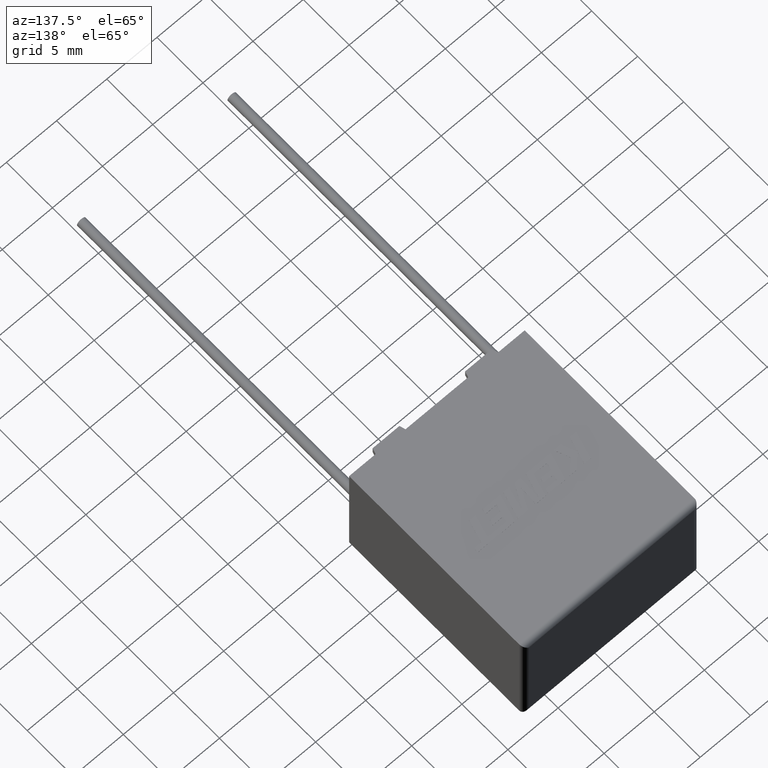
[diagram: clean part render]
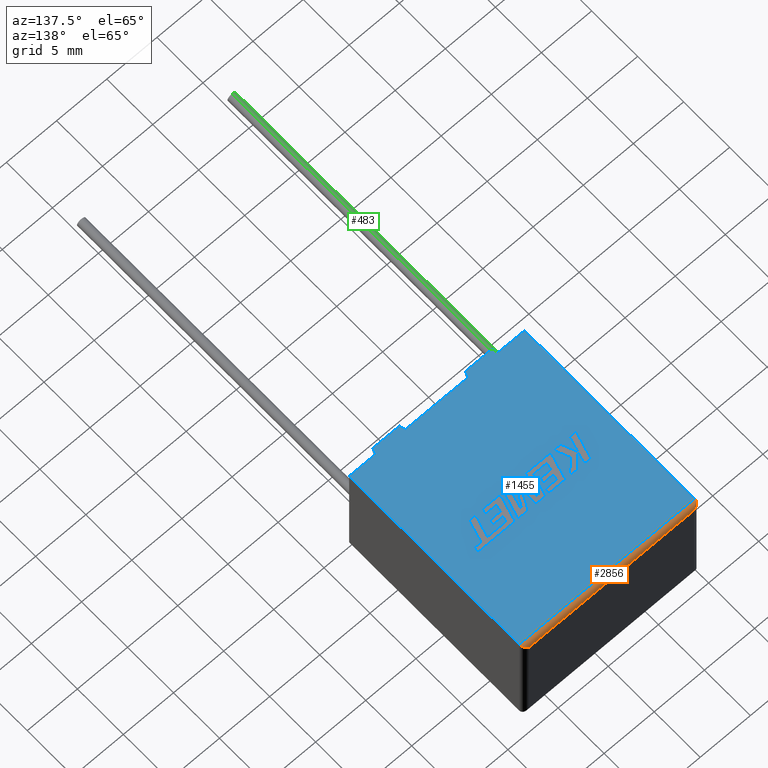
[diagram: same view with three faces highlighted in distinct colors, each labeled with its STEP entity id]
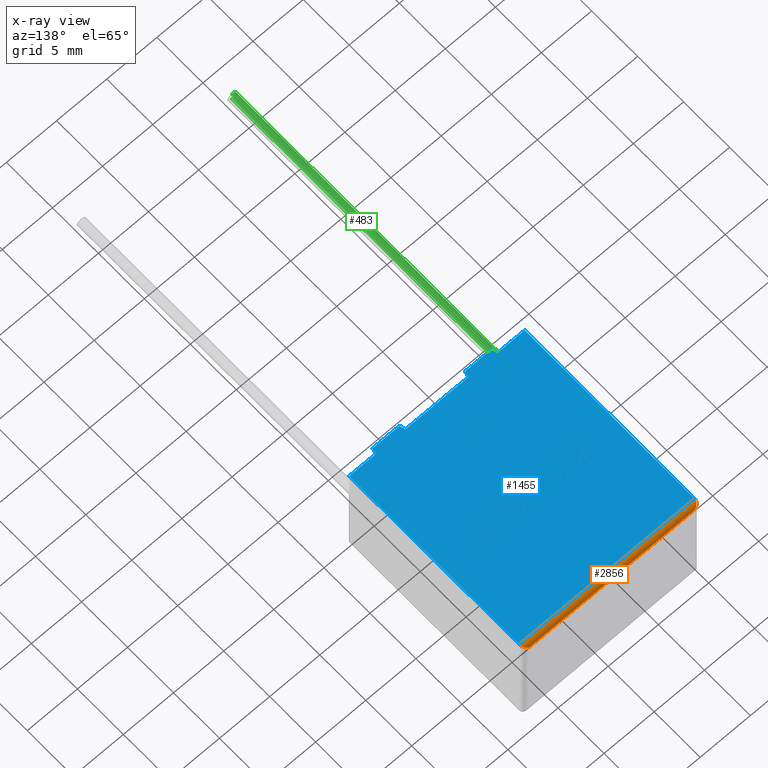
[diagram: x-ray of the same camera — body ghosted, the three highlighted faces saturated]
A machine part, auxiliary view with three faces highlighted in distinct colors.
The next image is the same camera in x-ray (body ghosted, the three faces saturated) — at least one of them is partly hidden behind the body in this view.
Their STEP definitions:

[orange] entity #2856 — the highlighted cylindrical surface (edge-blend (fillet) strip) has radius 0.5 mm, axis along (-1, 0, 0).
#91 = CARTESIAN_POINT ( 'NONE',  ( 17.00000000000000000, 19.00000000000000000, 11.00000000000000000 ) ) ;
#222 =( BOUNDED_CURVE ( )  B_SPLINE_CURVE ( 3, ( #91, #3211, #847, #856 ),
 .UNSPECIFIED., .F., .F. ) 
 B_SPLINE_CURVE_WITH_KNOTS ( ( 4, 4 ),
 ( 1.570796326794896600, 3.141592653589793100 ),
 .UNSPECIFIED. ) 
 CURVE ( )  GEOMETRIC_REPRESENTATION_ITEM ( )  RATIONAL_B_SPLINE_CURVE ( ( 1.000000000000000000, 0.8047378541243649400, 0.8047378541243649400, 1.000000000000000000 ) ) 
 REPRESENTATION_ITEM ( '' )  );
#300 = CARTESIAN_POINT ( 'NONE',  ( 0.2071067811865475200, 19.00000000000000000, 11.29289321881345200 ) ) ;
#331 = CARTESIAN_POINT ( 'NONE',  ( 0.0000000000000000000, 18.50000000000000000, 11.50000000000000000 ) ) ;
#368 = EDGE_CURVE ( 'NONE', #614, #1318, #222, .T. ) ;
#411 = ORIENTED_EDGE ( 'NONE', *, *, #1343, .T. ) ;
#451 = CARTESIAN_POINT ( 'NONE',  ( 0.5000000000000000000, 19.00000000000000000, 11.00000000000000000 ) ) ;
#486 = DIRECTION ( 'NONE',  ( 0.0000000000000000000, 0.0000000000000000000, 1.000000000000000000 ) ) ;
#525 = LINE ( 'NONE', #331, #2402 ) ;
#532 = VERTEX_POINT ( 'NONE', #451 ) ;
#555 = EDGE_CURVE ( 'NONE', #532, #614, #1845, .T. ) ;
#614 = VERTEX_POINT ( 'NONE', #1022 ) ;
#691 = CARTESIAN_POINT ( 'NONE',  ( 0.0000000000000000000, 19.00000000000000000, 11.00000000000000000 ) ) ;
#847 = CARTESIAN_POINT ( 'NONE',  ( 17.50000000000000000, 18.79289321881344700, 11.50000000000000000 ) ) ;
#856 = CARTESIAN_POINT ( 'NONE',  ( 17.50000000000000000, 18.50000000000000000, 11.50000000000000000 ) ) ;
#927 = ORIENTED_EDGE ( 'NONE', *, *, #555, .F. ) ;
#1022 = CARTESIAN_POINT ( 'NONE',  ( 17.00000000000000000, 19.00000000000000000, 11.00000000000000000 ) ) ;
#1038 = CARTESIAN_POINT ( 'NONE',  ( 17.50000000000000000, 18.50000000000000000, 11.50000000000000000 ) ) ;
#1041 = VERTEX_POINT ( 'NONE', #1868 ) ;
#1275 = CARTESIAN_POINT ( 'NONE',  ( 0.5000000000000000000, 19.00000000000000000, 11.00000000000000000 ) ) ;
#1318 = VERTEX_POINT ( 'NONE', #1038 ) ;
#1343 = EDGE_CURVE ( 'NONE', #532, #1041, #1581, .T. ) ;
#1487 = CARTESIAN_POINT ( 'NONE',  ( 0.0000000000000000000, 18.50000000000000000, 11.00000000000000000 ) ) ;
#1581 =( BOUNDED_CURVE ( )  B_SPLINE_CURVE ( 3, ( #1275, #300, #2315, #2271 ),
 .UNSPECIFIED., .F., .F. ) 
 B_SPLINE_CURVE_WITH_KNOTS ( ( 4, 4 ),
 ( 1.570796326794896800, 3.141592653589793100 ),
 .UNSPECIFIED. ) 
 CURVE ( )  GEOMETRIC_REPRESENTATION_ITEM ( )  RATIONAL_B_SPLINE_CURVE ( ( 1.000000000000000000, 0.8047378541243650500, 0.8047378541243650500, 1.000000000000000000 ) ) 
 REPRESENTATION_ITEM ( '' )  );
#1709 = DIRECTION ( 'NONE',  ( 1.000000000000000000, -0.0000000000000000000, -0.0000000000000000000 ) ) ;
#1845 = LINE ( 'NONE', #691, #1849 ) ;
#1849 = VECTOR ( 'NONE', #1709, 1000.000000000000000 ) ;
#1868 = CARTESIAN_POINT ( 'NONE',  ( 0.0000000000000000000, 18.50000000000000000, 11.50000000000000000 ) ) ;
#2022 = DIRECTION ( 'NONE',  ( -1.000000000000000000, 0.0000000000000000000, 0.0000000000000000000 ) ) ;
#2095 = DIRECTION ( 'NONE',  ( -1.000000000000000000, 0.0000000000000000000, 0.0000000000000000000 ) ) ;
#2110 = EDGE_LOOP ( 'NONE', ( #411, #2589, #2409, #927 ) ) ;
#2128 = FACE_OUTER_BOUND ( 'NONE', #2110, .T. ) ;
#2211 = AXIS2_PLACEMENT_3D ( 'NONE', #1487, #2022, #486 ) ;
#2271 = CARTESIAN_POINT ( 'NONE',  ( 0.0000000000000000000, 18.50000000000000000, 11.50000000000000000 ) ) ;
#2315 = CARTESIAN_POINT ( 'NONE',  ( 1.442892915397364600E-016, 18.79289321881345000, 11.50000000000000200 ) ) ;
#2402 = VECTOR ( 'NONE', #2095, 1000.000000000000000 ) ;
#2409 = ORIENTED_EDGE ( 'NONE', *, *, #368, .F. ) ;
#2413 = EDGE_CURVE ( 'NONE', #1318, #1041, #525, .T. ) ;
#2589 = ORIENTED_EDGE ( 'NONE', *, *, #2413, .F. ) ;
#2856 = ADVANCED_FACE ( 'NONE', ( #2128 ), #2872, .T. ) ;
#2872 = CYLINDRICAL_SURFACE ( 'NONE', #2211, 0.5000000000000004400 ) ;
#3211 = CARTESIAN_POINT ( 'NONE',  ( 17.29289321881345400, 19.00000000000000000, 11.29289321881345200 ) ) ;

[blue] entity #1455 — the highlighted planar face has unit normal (0, 0, -1).
#3 = LINE ( 'NONE', #765, #1926 ) ;
#26 = ORIENTED_EDGE ( 'NONE', *, *, #2191, .T. ) ;
#27 = DIRECTION ( 'NONE',  ( 1.000000000000000000, 0.0000000000000000000, 0.0000000000000000000 ) ) ;
#33 = AXIS2_PLACEMENT_3D ( 'NONE', #2144, #562, #1373 ) ;
#160 = LINE ( 'NONE', #599, #1497 ) ;
#240 = VECTOR ( 'NONE', #415, 1000.000000000000000 ) ;
#325 = ORIENTED_EDGE ( 'NONE', *, *, #328, .F. ) ;
#328 = EDGE_CURVE ( 'NONE', #3207, #412, #956, .T. ) ;
#331 = CARTESIAN_POINT ( 'NONE',  ( 0.0000000000000000000, 18.50000000000000000, 11.50000000000000000 ) ) ;
#359 = CARTESIAN_POINT ( 'NONE',  ( 2.650000000000001200, 0.0000000000000000000, 11.50000000000000000 ) ) ;
#377 = EDGE_LOOP ( 'NONE', ( #602, #3225, #3006, #1504, #2421, #26, #1694, #936, #2032, #325, #582, #1967 ) ) ;
#396 = CARTESIAN_POINT ( 'NONE',  ( 5.477500000000001800, -0.4999999999999997800, 11.50000000000000000 ) ) ;
#412 = VERTEX_POINT ( 'NONE', #758 ) ;
#415 = DIRECTION ( 'NONE',  ( -1.000000000000000000, 0.0000000000000000000, 0.0000000000000000000 ) ) ;
#448 = VERTEX_POINT ( 'NONE', #2036 ) ;
#507 = CARTESIAN_POINT ( 'NONE',  ( 0.0000000000000000000, 0.0000000000000000000, 11.50000000000000000 ) ) ;
#525 = LINE ( 'NONE', #331, #2402 ) ;
#548 = LINE ( 'NONE', #990, #1007 ) ;
#562 = DIRECTION ( 'NONE',  ( 0.0000000000000000000, 0.0000000000000000000, -1.000000000000000000 ) ) ;
#582 = ORIENTED_EDGE ( 'NONE', *, *, #2842, .F. ) ;
#599 = CARTESIAN_POINT ( 'NONE',  ( 5.477500000000001800, -0.4999999999999997800, 11.50000000000000000 ) ) ;
#602 = ORIENTED_EDGE ( 'NONE', *, *, #861, .T. ) ;
#623 = EDGE_CURVE ( 'NONE', #1041, #2642, #3, .T. ) ;
#667 = CARTESIAN_POINT ( 'NONE',  ( 0.0000000000000000000, 0.0000000000000000000, 11.50000000000000000 ) ) ;
#713 = VECTOR ( 'NONE', #1025, 1000.000000000000100 ) ;
#758 = CARTESIAN_POINT ( 'NONE',  ( 12.02250000000000100, -0.4999999999999997800, 11.50000000000000000 ) ) ;
#765 = CARTESIAN_POINT ( 'NONE',  ( 0.0000000000000000000, 0.0000000000000000000, 11.50000000000000000 ) ) ;
#767 = EDGE_CURVE ( 'NONE', #412, #3112, #548, .T. ) ;
#849 = VERTEX_POINT ( 'NONE', #2088 ) ;
#861 = EDGE_CURVE ( 'NONE', #1711, #1318, #2424, .T. ) ;
#936 = ORIENTED_EDGE ( 'NONE', *, *, #3049, .T. ) ;
#956 = LINE ( 'NONE', #1444, #240 ) ;
#990 = CARTESIAN_POINT ( 'NONE',  ( 12.02250000000000100, -0.4999999999999997800, 11.50000000000000000 ) ) ;
#1007 = VECTOR ( 'NONE', #1255, 1000.000000000000100 ) ;
#1023 = VECTOR ( 'NONE', #1990, 1000.000000000000000 ) ;
#1025 = DIRECTION ( 'NONE',  ( 0.2873478855663453300, -0.9578262852211513200, 0.0000000000000000000 ) ) ;
#1038 = CARTESIAN_POINT ( 'NONE',  ( 17.50000000000000000, 18.50000000000000000, 11.50000000000000000 ) ) ;
#1041 = VERTEX_POINT ( 'NONE', #1868 ) ;
#1054 = CARTESIAN_POINT ( 'NONE',  ( 11.87250000000000000, 3.445849931100865400E-016, 11.50000000000000000 ) ) ;
#1109 = VERTEX_POINT ( 'NONE', #396 ) ;
#1234 = CARTESIAN_POINT ( 'NONE',  ( 2.800000000000001200, -0.4999999999999997800, 11.50000000000000000 ) ) ;
#1238 = CARTESIAN_POINT ( 'NONE',  ( 0.0000000000000000000, 0.0000000000000000000, 11.50000000000000000 ) ) ;
#1255 = DIRECTION ( 'NONE',  ( -0.2873478855663437700, 0.9578262852211517600, 0.0000000000000000000 ) ) ;
#1260 = CARTESIAN_POINT ( 'NONE',  ( 17.50000000000000000, 0.0000000000000000000, 11.50000000000000000 ) ) ;
#1272 = CARTESIAN_POINT ( 'NONE',  ( 2.650000000000001200, 1.622657008870243500E-016, 11.50000000000000000 ) ) ;
#1318 = VERTEX_POINT ( 'NONE', #1038 ) ;
#1349 = VECTOR ( 'NONE', #2995, 1000.000000000000000 ) ;
#1373 = DIRECTION ( 'NONE',  ( -1.000000000000000000, 0.0000000000000000000, -0.0000000000000000000 ) ) ;
#1429 = CARTESIAN_POINT ( 'NONE',  ( 14.70000000000000100, -0.4999999999999997800, 11.50000000000000000 ) ) ;
#1444 = CARTESIAN_POINT ( 'NONE',  ( 14.70000000000000100, -0.4999999999999997800, 11.50000000000000000 ) ) ;
#1455 = ADVANCED_FACE ( 'NONE', ( #2316 ), #2650, .F. ) ;
#1497 = VECTOR ( 'NONE', #1828, 1000.000000000000100 ) ;
#1504 = ORIENTED_EDGE ( 'NONE', *, *, #2916, .T. ) ;
#1536 = VECTOR ( 'NONE', #27, 1000.000000000000000 ) ;
#1569 = VECTOR ( 'NONE', #2599, 1000.000000000000000 ) ;
#1607 = VECTOR ( 'NONE', #3064, 1000.000000000000000 ) ;
#1694 = ORIENTED_EDGE ( 'NONE', *, *, #3026, .T. ) ;
#1711 = VERTEX_POINT ( 'NONE', #1260 ) ;
#1828 = DIRECTION ( 'NONE',  ( 0.2873478855663437700, 0.9578262852211517600, 0.0000000000000000000 ) ) ;
#1868 = CARTESIAN_POINT ( 'NONE',  ( 0.0000000000000000000, 18.50000000000000000, 11.50000000000000000 ) ) ;
#1926 = VECTOR ( 'NONE', #2023, 1000.000000000000000 ) ;
#1946 = LINE ( 'NONE', #1238, #1349 ) ;
#1967 = ORIENTED_EDGE ( 'NONE', *, *, #2058, .T. ) ;
#1990 = DIRECTION ( 'NONE',  ( 1.000000000000000000, 0.0000000000000000000, 0.0000000000000000000 ) ) ;
#2023 = DIRECTION ( 'NONE',  ( -0.0000000000000000000, -1.000000000000000000, -0.0000000000000000000 ) ) ;
#2032 = ORIENTED_EDGE ( 'NONE', *, *, #767, .F. ) ;
#2036 = CARTESIAN_POINT ( 'NONE',  ( 14.84999999999999800, 0.0000000000000000000, 11.50000000000000000 ) ) ;
#2058 = EDGE_CURVE ( 'NONE', #448, #1711, #1946, .T. ) ;
#2077 = LINE ( 'NONE', #1272, #713 ) ;
#2088 = CARTESIAN_POINT ( 'NONE',  ( 2.800000000000001200, -0.4999999999999997800, 11.50000000000000000 ) ) ;
#2095 = DIRECTION ( 'NONE',  ( -1.000000000000000000, 0.0000000000000000000, 0.0000000000000000000 ) ) ;
#2144 = CARTESIAN_POINT ( 'NONE',  ( 0.0000000000000000000, 0.0000000000000000000, 11.50000000000000000 ) ) ;
#2191 = EDGE_CURVE ( 'NONE', #849, #1109, #3137, .T. ) ;
#2263 = EDGE_CURVE ( 'NONE', #2619, #849, #2077, .T. ) ;
#2296 = VECTOR ( 'NONE', #3249, 1000.000000000000100 ) ;
#2316 = FACE_OUTER_BOUND ( 'NONE', #377, .T. ) ;
#2402 = VECTOR ( 'NONE', #2095, 1000.000000000000000 ) ;
#2413 = EDGE_CURVE ( 'NONE', #1318, #1041, #525, .T. ) ;
#2421 = ORIENTED_EDGE ( 'NONE', *, *, #2263, .T. ) ;
#2424 = LINE ( 'NONE', #2850, #1607 ) ;
#2599 = DIRECTION ( 'NONE',  ( 1.000000000000000000, 0.0000000000000000000, 0.0000000000000000000 ) ) ;
#2612 = VERTEX_POINT ( 'NONE', #2618 ) ;
#2618 = CARTESIAN_POINT ( 'NONE',  ( 5.627500000000000400, 3.445849931100865400E-016, 11.50000000000000000 ) ) ;
#2619 = VERTEX_POINT ( 'NONE', #359 ) ;
#2632 = LINE ( 'NONE', #507, #1536 ) ;
#2642 = VERTEX_POINT ( 'NONE', #667 ) ;
#2650 = PLANE ( 'NONE',  #33 ) ;
#2760 = LINE ( 'NONE', #2849, #1569 ) ;
#2842 = EDGE_CURVE ( 'NONE', #448, #3207, #2949, .T. ) ;
#2849 = CARTESIAN_POINT ( 'NONE',  ( 0.0000000000000000000, 0.0000000000000000000, 11.50000000000000000 ) ) ;
#2850 = CARTESIAN_POINT ( 'NONE',  ( 17.50000000000000000, 0.0000000000000000000, 11.50000000000000000 ) ) ;
#2916 = EDGE_CURVE ( 'NONE', #2642, #2619, #2632, .T. ) ;
#2949 = LINE ( 'NONE', #3226, #2296 ) ;
#2995 = DIRECTION ( 'NONE',  ( 1.000000000000000000, 0.0000000000000000000, 0.0000000000000000000 ) ) ;
#3006 = ORIENTED_EDGE ( 'NONE', *, *, #623, .T. ) ;
#3026 = EDGE_CURVE ( 'NONE', #1109, #2612, #160, .T. ) ;
#3049 = EDGE_CURVE ( 'NONE', #2612, #3112, #2760, .T. ) ;
#3064 = DIRECTION ( 'NONE',  ( 0.0000000000000000000, 1.000000000000000000, 0.0000000000000000000 ) ) ;
#3112 = VERTEX_POINT ( 'NONE', #1054 ) ;
#3137 = LINE ( 'NONE', #1234, #1023 ) ;
#3207 = VERTEX_POINT ( 'NONE', #1429 ) ;
#3225 = ORIENTED_EDGE ( 'NONE', *, *, #2413, .T. ) ;
#3226 = CARTESIAN_POINT ( 'NONE',  ( 14.85000000000000000, 1.622657008870243500E-016, 11.50000000000000000 ) ) ;
#3249 = DIRECTION ( 'NONE',  ( -0.2873478855663453300, -0.9578262852211513200, 0.0000000000000000000 ) ) ;

[green] entity #483 — the highlighted cylindrical surface (edge-blend (fillet) strip) has radius 0.425 mm, axis along (-0, 1, -0).
#76 = AXIS2_PLACEMENT_3D ( 'NONE', #1395, #1629, #2627 ) ;
#333 = EDGE_CURVE ( 'NONE', #1306, #1316, #1975, .T. ) ;
#400 = DIRECTION ( 'NONE',  ( 0.0000000000000000000, 0.0000000000000000000, 1.000000000000000000 ) ) ;
#483 = ADVANCED_FACE ( 'NONE', ( #1566 ), #743, .T. ) ;
#487 = ORIENTED_EDGE ( 'NONE', *, *, #2572, .T. ) ;
#494 = VERTEX_POINT ( 'NONE', #1999 ) ;
#503 = ORIENTED_EDGE ( 'NONE', *, *, #333, .F. ) ;
#559 = CIRCLE ( 'NONE', #2121, 0.4250000000000000400 ) ;
#593 = LINE ( 'NONE', #2394, #3228 ) ;
#636 = CARTESIAN_POINT ( 'NONE',  ( 1.250000000000001100, -30.50000000000000000, 5.325000000000000200 ) ) ;
#743 = CYLINDRICAL_SURFACE ( 'NONE', #1799, 0.4250000000000000400 ) ;
#1014 = DIRECTION ( 'NONE',  ( -0.0000000000000000000, 1.000000000000000000, -0.0000000000000000000 ) ) ;
#1059 = EDGE_LOOP ( 'NONE', ( #503, #1283, #487, #2725 ) ) ;
#1283 = ORIENTED_EDGE ( 'NONE', *, *, #1445, .F. ) ;
#1298 = VECTOR ( 'NONE', #3153, 1000.000000000000000 ) ;
#1306 = VERTEX_POINT ( 'NONE', #2803 ) ;
#1316 = VERTEX_POINT ( 'NONE', #2821 ) ;
#1390 = CARTESIAN_POINT ( 'NONE',  ( 1.250000000000001100, 0.0000000000000000000, 5.750000000000000000 ) ) ;
#1395 = CARTESIAN_POINT ( 'NONE',  ( 1.250000000000001100, -30.50000000000000000, 5.750000000000000000 ) ) ;
#1445 = EDGE_CURVE ( 'NONE', #494, #1306, #3051, .T. ) ;
#1566 = FACE_OUTER_BOUND ( 'NONE', #1059, .T. ) ;
#1629 = DIRECTION ( 'NONE',  ( 0.0000000000000000000, -1.000000000000000000, 0.0000000000000000000 ) ) ;
#1642 = DIRECTION ( 'NONE',  ( -0.0000000000000000000, -1.000000000000000000, -0.0000000000000000000 ) ) ;
#1799 = AXIS2_PLACEMENT_3D ( 'NONE', #2046, #1014, #1970 ) ;
#1970 = DIRECTION ( 'NONE',  ( 0.0000000000000000000, 0.0000000000000000000, 1.000000000000000000 ) ) ;
#1975 = LINE ( 'NONE', #636, #1298 ) ;
#1999 = CARTESIAN_POINT ( 'NONE',  ( 1.250000000000001100, -30.50000000000000000, 6.174999999999999800 ) ) ;
#2046 = CARTESIAN_POINT ( 'NONE',  ( 1.250000000000001100, -30.50000000000000000, 5.750000000000000000 ) ) ;
#2121 = AXIS2_PLACEMENT_3D ( 'NONE', #1390, #1642, #400 ) ;
#2267 = VERTEX_POINT ( 'NONE', #3027 ) ;
#2394 = CARTESIAN_POINT ( 'NONE',  ( 1.250000000000001100, -30.50000000000000000, 6.174999999999999800 ) ) ;
#2572 = EDGE_CURVE ( 'NONE', #494, #2267, #593, .T. ) ;
#2624 = DIRECTION ( 'NONE',  ( -0.0000000000000000000, 1.000000000000000000, -0.0000000000000000000 ) ) ;
#2627 = DIRECTION ( 'NONE',  ( 0.0000000000000000000, 0.0000000000000000000, -1.000000000000000000 ) ) ;
#2696 = EDGE_CURVE ( 'NONE', #2267, #1316, #559, .T. ) ;
#2725 = ORIENTED_EDGE ( 'NONE', *, *, #2696, .T. ) ;
#2803 = CARTESIAN_POINT ( 'NONE',  ( 1.250000000000001100, -30.50000000000000000, 5.325000000000000200 ) ) ;
#2821 = CARTESIAN_POINT ( 'NONE',  ( 1.250000000000001100, 0.0000000000000000000, 5.325000000000000200 ) ) ;
#3027 = CARTESIAN_POINT ( 'NONE',  ( 1.250000000000001100, 0.0000000000000000000, 6.174999999999999800 ) ) ;
#3051 = CIRCLE ( 'NONE', #76, 0.4250000000000000400 ) ;
#3153 = DIRECTION ( 'NONE',  ( -0.0000000000000000000, 1.000000000000000000, -0.0000000000000000000 ) ) ;
#3228 = VECTOR ( 'NONE', #2624, 1000.000000000000000 ) ;